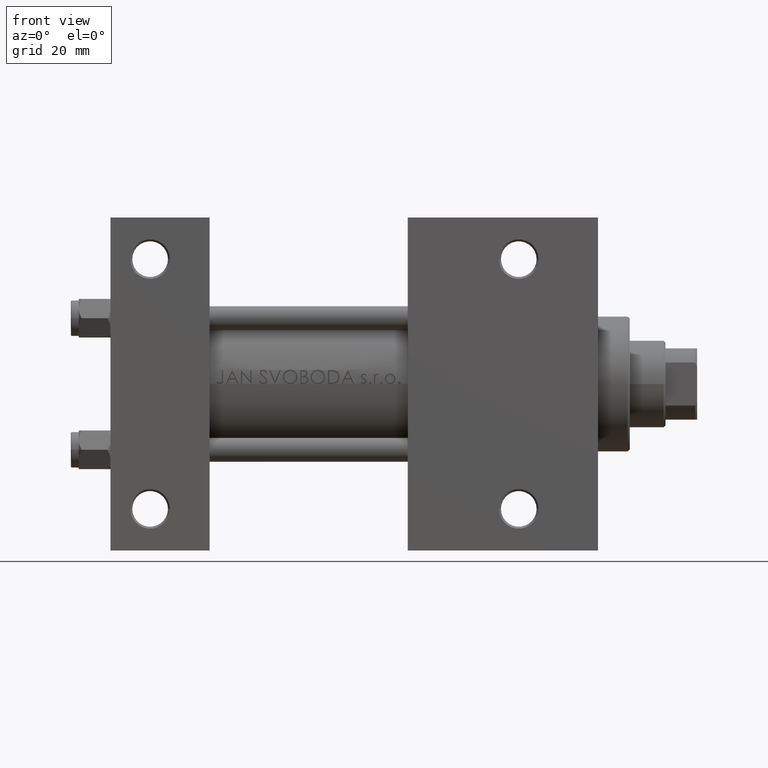
[diagram: clean part render]
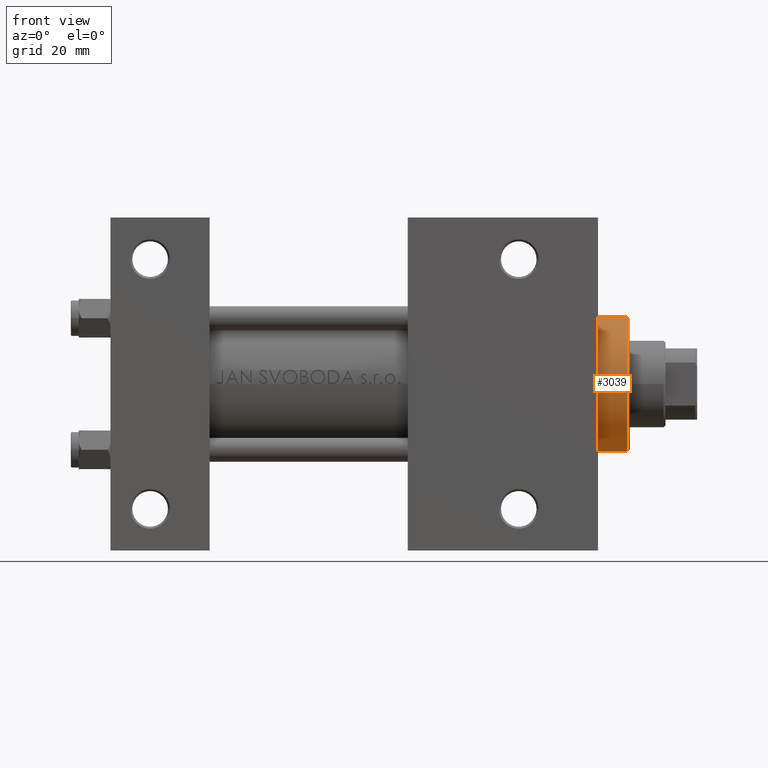
[diagram: same view with one face highlighted and labeled with its STEP entity id]
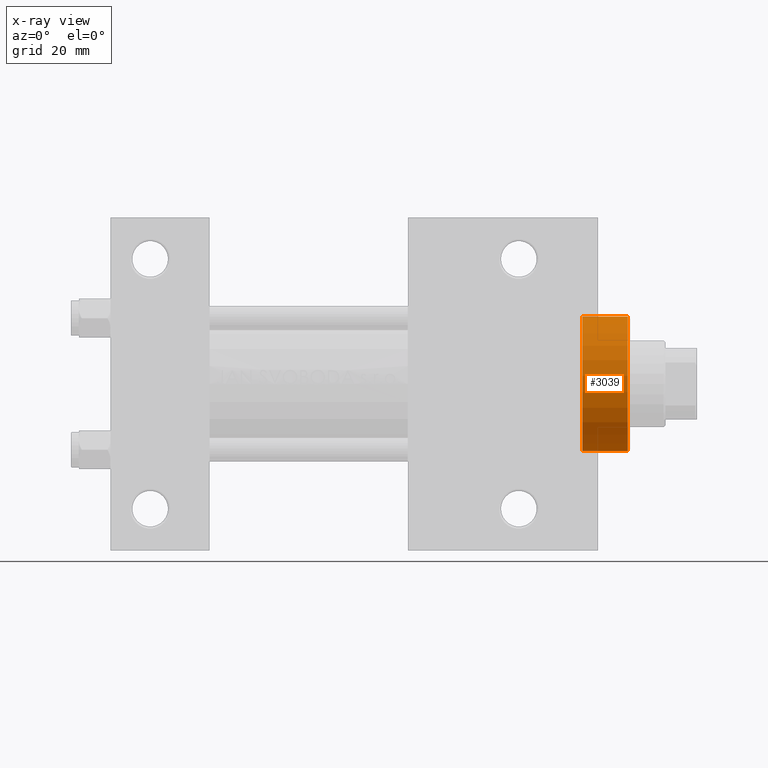
[diagram: x-ray of the same camera — body ghosted, the highlighted face saturated]
A machine part, front view. The second image highlights one B-rep face of the part: STEP entity #3039.
The next image is the same camera in x-ray: the body ghosted, the highlighted face saturated — about 1% of this face is hidden behind the body in this view.
In plain terms, the highlighted cylindrical surface (partial cylindrical patch) has radius 17 mm, axis along (-1, -0, 0).
Its self-contained STEP definition (entity closure, byte-faithful):
#580 = ORIENTED_EDGE ( 'NONE', *, *, #36335, .T. ) ;
#1660 = DIRECTION ( 'NONE',  ( -0.000000000000000000, -0.000000000000000000, -1.000000000000000000 ) ) ;
#2074 = DIRECTION ( 'NONE',  ( 1.000000000000000000, 0.000000000000000000, 0.000000000000000000 ) ) ;
#2420 = VECTOR ( 'NONE', #30507, 1000.000000000000000 ) ;
#3039 = ADVANCED_FACE ( 'NONE', ( #30277 ), #27152, .T. ) ;
#5374 = VERTEX_POINT ( 'NONE', #36726 ) ;
#7552 = DIRECTION ( 'NONE',  ( 0.000000000000000000, 0.000000000000000000, 1.000000000000000000 ) ) ;
#10633 = ORIENTED_EDGE ( 'NONE', *, *, #38351, .T. ) ;
#11467 = AXIS2_PLACEMENT_3D ( 'NONE', #18990, #1660, #44948 ) ;
#11634 = CARTESIAN_POINT ( 'NONE',  ( 17.00000000000000000, 2.081899558550500280E-15, 28.69999999999999929 ) ) ;
#13165 = LINE ( 'NONE', #24214, #38658 ) ;
#15676 = VERTEX_POINT ( 'NONE', #24061 ) ;
#18990 = CARTESIAN_POINT ( 'NONE',  ( 0.000000000000000000, 0.000000000000000000, 40.70000000000000284 ) ) ;
#22044 = ORIENTED_EDGE ( 'NONE', *, *, #46307, .F. ) ;
#24061 = CARTESIAN_POINT ( 'NONE',  ( 17.00000000000000000, 2.081899558550500280E-15, 40.19999999999999574 ) ) ;
#24214 = CARTESIAN_POINT ( 'NONE',  ( 17.00000000000000000, 2.081899558550500280E-15, 40.70000000000000284 ) ) ;
#25896 = EDGE_LOOP ( 'NONE', ( #22044, #31553, #580, #10633 ) ) ;
#27147 = VERTEX_POINT ( 'NONE', #11634 ) ;
#27152 = CYLINDRICAL_SURFACE ( 'NONE', #11467, 17.00000000000000000 ) ;
#27614 = LINE ( 'NONE', #27858, #2420 ) ;
#27826 = CIRCLE ( 'NONE', #43205, 17.00000000000000000 ) ;
#27858 = CARTESIAN_POINT ( 'NONE',  ( -17.00000000000000000, 0.000000000000000000, 40.70000000000000284 ) ) ;
#28490 = CARTESIAN_POINT ( 'NONE',  ( 0.000000000000000000, 0.000000000000000000, 28.69999999999999929 ) ) ;
#29831 = EDGE_CURVE ( 'NONE', #15676, #36782, #40118, .T. ) ;
#30277 = FACE_OUTER_BOUND ( 'NONE', #25896, .T. ) ;
#30507 = DIRECTION ( 'NONE',  ( -0.000000000000000000, -0.000000000000000000, -1.000000000000000000 ) ) ;
#31553 = ORIENTED_EDGE ( 'NONE', *, *, #29831, .T. ) ;
#31629 = CARTESIAN_POINT ( 'NONE',  ( 0.000000000000000000, 0.000000000000000000, 40.19999999999999574 ) ) ;
#36335 = EDGE_CURVE ( 'NONE', #36782, #5374, #27614, .T. ) ;
#36726 = CARTESIAN_POINT ( 'NONE',  ( -17.00000000000000000, 0.000000000000000000, 28.69999999999999929 ) ) ;
#36782 = VERTEX_POINT ( 'NONE', #38559 ) ;
#38351 = EDGE_CURVE ( 'NONE', #5374, #27147, #27826, .T. ) ;
#38559 = CARTESIAN_POINT ( 'NONE',  ( -17.00000000000000000, 0.000000000000000000, 40.19999999999999574 ) ) ;
#38658 = VECTOR ( 'NONE', #39368, 1000.000000000000000 ) ;
#39364 = AXIS2_PLACEMENT_3D ( 'NONE', #31629, #46318, #2074 ) ;
#39368 = DIRECTION ( 'NONE',  ( -0.000000000000000000, -0.000000000000000000, -1.000000000000000000 ) ) ;
#40118 = CIRCLE ( 'NONE', #39364, 17.00000000000000000 ) ;
#43205 = AXIS2_PLACEMENT_3D ( 'NONE', #28490, #7552, #43877 ) ;
#43877 = DIRECTION ( 'NONE',  ( 1.000000000000000000, 0.000000000000000000, 0.000000000000000000 ) ) ;
#44948 = DIRECTION ( 'NONE',  ( -1.000000000000000000, 0.000000000000000000, 0.000000000000000000 ) ) ;
#46307 = EDGE_CURVE ( 'NONE', #15676, #27147, #13165, .T. ) ;
#46318 = DIRECTION ( 'NONE',  ( 0.000000000000000000, 0.000000000000000000, -1.000000000000000000 ) ) ;